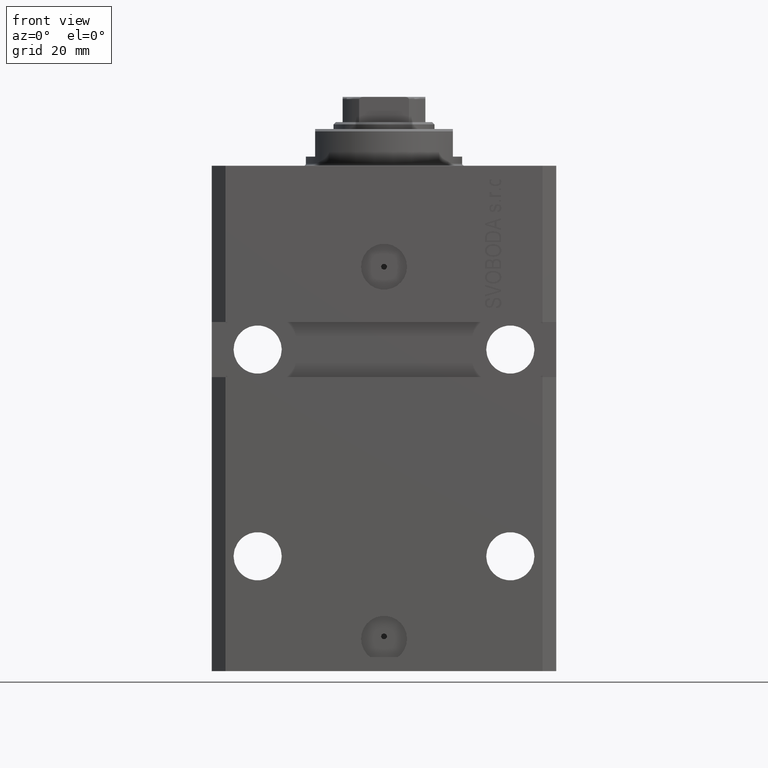
[diagram: clean part render]
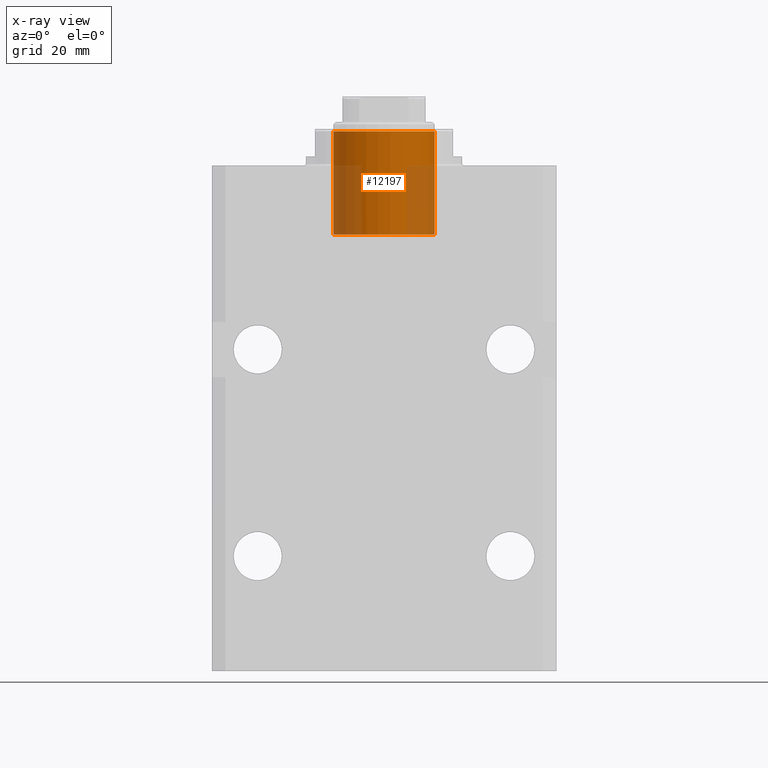
[diagram: x-ray — body ghosted, one internal face saturated and labeled with its STEP entity id]
A machine part, front view, then the same camera in x-ray: the body is ghosted and one INTERNAL B-rep face — a face not visible from any outside direction — is saturated and labeled: STEP entity #12197.
In plain terms, the highlighted cylindrical surface (partial cylindrical patch) has radius 11 mm, axis along (0, -0, 1).
Its self-contained STEP definition (entity closure, byte-faithful):
#1080 = VERTEX_POINT ( 'NONE', #41050 ) ;
#2100 = CARTESIAN_POINT ( 'NONE',  ( -11.00000000000000000, 0.000000000000000000, 15.00000000000000000 ) ) ;
#3676 = EDGE_CURVE ( 'NONE', #30482, #1080, #28901, .T. ) ;
#5803 = DIRECTION ( 'NONE',  ( -1.000000000000000000, 0.000000000000000000, 0.000000000000000000 ) ) ;
#7254 = VECTOR ( 'NONE', #23929, 1000.000000000000000 ) ;
#7663 = CIRCLE ( 'NONE', #9977, 11.00000000000000000 ) ;
#7992 = AXIS2_PLACEMENT_3D ( 'NONE', #28449, #27982, #28214 ) ;
#8465 = EDGE_CURVE ( 'NONE', #32781, #30482, #46460, .T. ) ;
#8780 = ORIENTED_EDGE ( 'NONE', *, *, #8465, .T. ) ;
#9137 = CARTESIAN_POINT ( 'NONE',  ( 11.00000000000000000, 1.347111479062088405E-15, 15.00000000000000000 ) ) ;
#9977 = AXIS2_PLACEMENT_3D ( 'NONE', #31495, #38290, #5803 ) ;
#12197 = ADVANCED_FACE ( 'NONE', ( #17716 ), #25463, .F. ) ;
#13278 = EDGE_CURVE ( 'NONE', #32781, #42303, #7663, .T. ) ;
#17716 = FACE_OUTER_BOUND ( 'NONE', #18553, .T. ) ;
#18553 = EDGE_LOOP ( 'NONE', ( #42191, #8780, #29379, #40047 ) ) ;
#23638 = CARTESIAN_POINT ( 'NONE',  ( -11.00000000000000000, 0.000000000000000000, 15.00000000000000000 ) ) ;
#23929 = DIRECTION ( 'NONE',  ( -0.000000000000000000, -0.000000000000000000, -1.000000000000000000 ) ) ;
#24073 = EDGE_CURVE ( 'NONE', #42303, #1080, #32123, .T. ) ;
#25463 = CYLINDRICAL_SURFACE ( 'NONE', #39503, 11.00000000000000000 ) ;
#25706 = CARTESIAN_POINT ( 'NONE',  ( 0.000000000000000000, 0.000000000000000000, 15.00000000000000000 ) ) ;
#27982 = DIRECTION ( 'NONE',  ( 0.000000000000000000, 0.000000000000000000, -1.000000000000000000 ) ) ;
#28214 = DIRECTION ( 'NONE',  ( -1.000000000000000000, 0.000000000000000000, 0.000000000000000000 ) ) ;
#28449 = CARTESIAN_POINT ( 'NONE',  ( 0.000000000000000000, 0.000000000000000000, -7.500000000000000000 ) ) ;
#28566 = CARTESIAN_POINT ( 'NONE',  ( 11.00000000000000000, 1.347111479062088405E-15, 15.00000000000000000 ) ) ;
#28901 = CIRCLE ( 'NONE', #7992, 11.00000000000000000 ) ;
#29379 = ORIENTED_EDGE ( 'NONE', *, *, #3676, .T. ) ;
#30482 = VERTEX_POINT ( 'NONE', #35350 ) ;
#31495 = CARTESIAN_POINT ( 'NONE',  ( 0.000000000000000000, 0.000000000000000000, 15.00000000000000000 ) ) ;
#32123 = LINE ( 'NONE', #2100, #33228 ) ;
#32506 = DIRECTION ( 'NONE',  ( -0.000000000000000000, -0.000000000000000000, -1.000000000000000000 ) ) ;
#32781 = VERTEX_POINT ( 'NONE', #28566 ) ;
#33228 = VECTOR ( 'NONE', #47145, 1000.000000000000000 ) ;
#35350 = CARTESIAN_POINT ( 'NONE',  ( 11.00000000000000000, 1.347111479062088405E-15, -7.500000000000000000 ) ) ;
#38290 = DIRECTION ( 'NONE',  ( 0.000000000000000000, 0.000000000000000000, -1.000000000000000000 ) ) ;
#39503 = AXIS2_PLACEMENT_3D ( 'NONE', #25706, #32506, #43652 ) ;
#40047 = ORIENTED_EDGE ( 'NONE', *, *, #24073, .F. ) ;
#41050 = CARTESIAN_POINT ( 'NONE',  ( -11.00000000000000000, 0.000000000000000000, -7.500000000000000000 ) ) ;
#42191 = ORIENTED_EDGE ( 'NONE', *, *, #13278, .F. ) ;
#42303 = VERTEX_POINT ( 'NONE', #23638 ) ;
#43652 = DIRECTION ( 'NONE',  ( -1.000000000000000000, 0.000000000000000000, 0.000000000000000000 ) ) ;
#46460 = LINE ( 'NONE', #9137, #7254 ) ;
#47145 = DIRECTION ( 'NONE',  ( -0.000000000000000000, -0.000000000000000000, -1.000000000000000000 ) ) ;